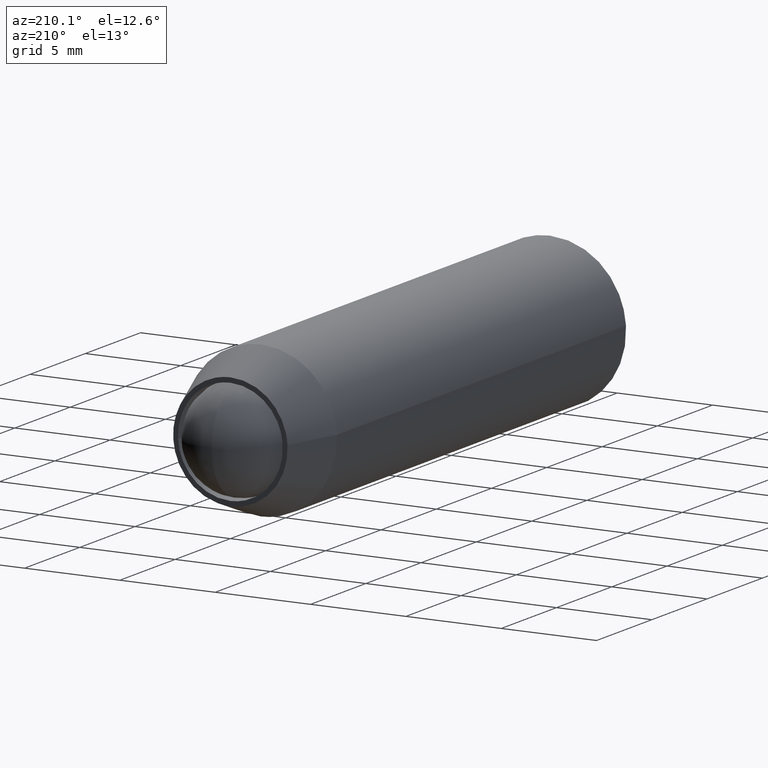
[diagram: clean part render]
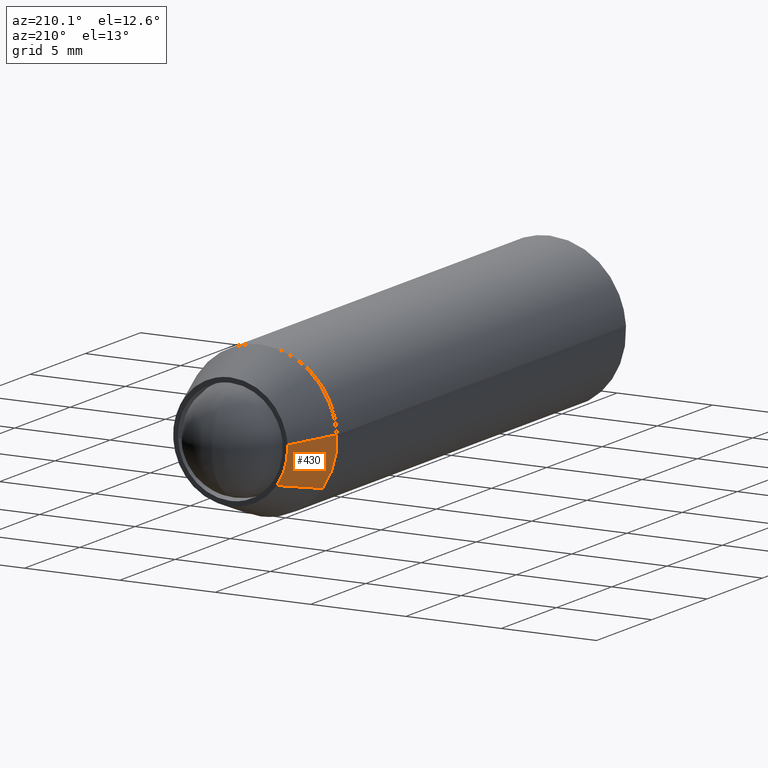
[diagram: same view with one face highlighted and labeled with its STEP entity id]
A machine part, auxiliary view. The second image highlights one B-rep face of the part: STEP entity #430.
In plain terms, the highlighted face is a freeform B-spline surface patch.
Its self-contained STEP definition (entity closure, byte-faithful):
#256=CARTESIAN_POINT('',(-2.432920718910286,-3.551586E-013,-1.755248351515488));
#257=VERTEX_POINT('',#256);
#290=CARTESIAN_POINT('',(-2.994404395265815,-7.142620E-012,0.183145618643663));
#291=VERTEX_POINT('',#290);
#305=CARTESIAN_POINT('',(-3.992539330740283,-2.747476996330162,0.244191895424097));
#306=VERTEX_POINT('',#305);
#307=CARTESIAN_POINT('',(-2.994404395265815,-7.142620E-012,0.183145618643663));
#308=CARTESIAN_POINT('',(-3.992539330740283,-2.747476996330162,0.244191895424097));
#309=QUASI_UNIFORM_CURVE('',1,(#307,#308),.UNSPECIFIED.,.F.,.U.);
#310=EDGE_CURVE('',#291,#306,#309,.T.);
#359=CARTESIAN_POINT('',(-3.243894291882287,-2.747477000000121,-2.340331135351121));
#360=VERTEX_POINT('',#359);
#374=CARTESIAN_POINT('',(-2.432920718910286,-3.551586E-013,-1.755248351515488));
#375=CARTESIAN_POINT('',(-3.243894291882287,-2.747477000000121,-2.340331135351121));
#376=QUASI_UNIFORM_CURVE('',1,(#374,#375),.UNSPECIFIED.,.F.,.U.);
#377=EDGE_CURVE('',#257,#360,#376,.T.);
#382=CARTESIAN_POINT('',(-2.969451025305055,0.068686925000000,0.181619405116199));
#383=CARTESIAN_POINT('',(-3.034317225933767,0.068686925000000,-0.878933600446937));
#384=CARTESIAN_POINT('',(-2.412646379587942,0.068686925000000,-1.740621281916663));
#385=CARTESIAN_POINT('',(-4.018116397897027,-2.817881098125001,0.245758526965008));
#386=CARTESIAN_POINT('',(-4.105890179041889,-2.817881098125000,-1.189330109344269));
#387=CARTESIAN_POINT('',(-3.264675489690320,-2.817881098125001,-2.355323881685970));
#395=(BOUNDED_SURFACE()B_SPLINE_SURFACE(2,1,((#382,#385),(#383,#386),(#384,#387)),.UNSPECIFIED.,.F.,.F.,.U.)B_SPLINE_SURFACE_WITH_KNOTS((3,3),(2,2),(0.0,2.927511655842914),(0.0,3.071821583808665),.UNSPECIFIED.)GEOMETRIC_REPRESENTATION_ITEM()RATIONAL_B_SPLINE_SURFACE(((1.0,1.0),(0.871126983722081,0.871126983722081),(0.855662221768731,0.855662221768731)))REPRESENTATION_ITEM('')SURFACE());
#396=CARTESIAN_POINT('',(-2.994404395265815,-7.142620E-012,0.183145618643663));
#397=CARTESIAN_POINT('',(-3.0,0.0,0.091658289934809));
#398=CARTESIAN_POINT('',(-3.0,0.0,-6.735335E-016));
#399=CARTESIAN_POINT('',(-3.0,0.0,-0.969229136038800));
#400=CARTESIAN_POINT('',(-2.432920718910286,-3.551586E-013,-1.755248351515487));
#408=(BOUNDED_CURVE()B_SPLINE_CURVE(2,(#396,#397,#398,#399,#400),.UNSPECIFIED.,.F.,.U.)B_SPLINE_CURVE_WITH_KNOTS((3,2,3),(0.739332962237481,0.750000000000000,0.850743050382349),.UNSPECIFIED.)CURVE()GEOMETRIC_REPRESENTATION_ITEM()RATIONAL_B_SPLINE_CURVE((0.976072041663585,0.987502787898125,1.0,0.881972174801712,0.859068214727186))REPRESENTATION_ITEM(''));
#409=EDGE_CURVE('',#291,#257,#408,.T.);
#410=ORIENTED_EDGE('',*,*,#409,.T.);
#411=ORIENTED_EDGE('',*,*,#377,.T.);
#412=CARTESIAN_POINT('',(-3.992539330740283,-2.747476996330162,0.244191895424097));
#413=CARTESIAN_POINT('',(-4.000000000000001,-2.747477000000000,0.122209918705447));
#414=CARTESIAN_POINT('',(-4.0,-2.747477000000000,-6.735335E-016));
#415=CARTESIAN_POINT('',(-4.0,-2.747477000000000,-1.292305514714619));
#416=CARTESIAN_POINT('',(-3.243894291882287,-2.747477000000120,-2.340331135351120));
#424=(BOUNDED_CURVE()B_SPLINE_CURVE(2,(#412,#413,#414,#415,#416),.UNSPECIFIED.,.F.,.U.)B_SPLINE_CURVE_WITH_KNOTS((3,2,3),(0.739333060026910,0.750000000000000,0.850743050382089),.UNSPECIFIED.)CURVE()GEOMETRIC_REPRESENTATION_ITEM()RATIONAL_B_SPLINE_CURVE((0.976072251245035,0.987502902465567,1.0,0.881972174802017,0.859068214727304))REPRESENTATION_ITEM(''));
#425=EDGE_CURVE('',#306,#360,#424,.T.);
#426=ORIENTED_EDGE('',*,*,#425,.F.);
#427=ORIENTED_EDGE('',*,*,#310,.F.);
#428=EDGE_LOOP('',(#410,#411,#426,#427));
#429=FACE_OUTER_BOUND('',#428,.T.);
#430=ADVANCED_FACE('',(#429),#395,.T.);